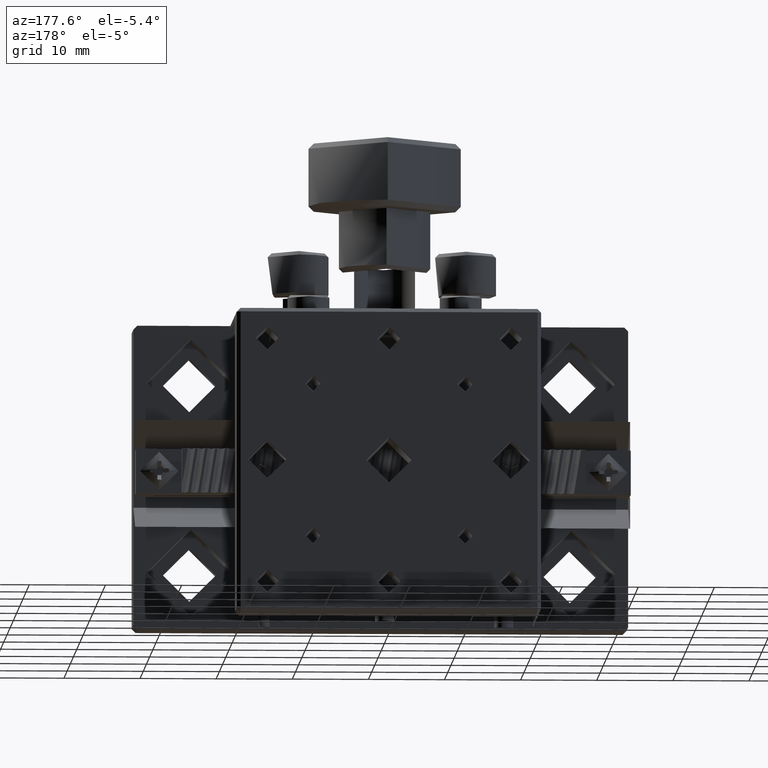
[diagram: clean part render]
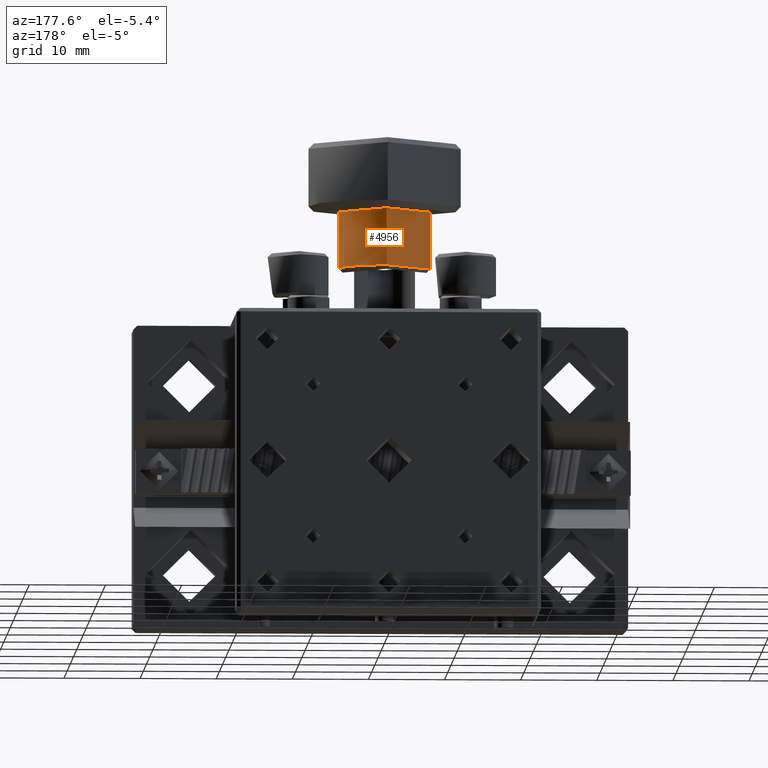
[diagram: same view with one face highlighted and labeled with its STEP entity id]
A machine part, auxiliary view. The second image highlights one B-rep face of the part: STEP entity #4956.
In plain terms, the highlighted cylindrical surface (bore or boss wall) has radius 6 mm, axis along (-0, 0, -1).
Its self-contained STEP definition (entity closure, byte-faithful):
#621 = CARTESIAN_POINT ( 'NONE',  ( 20.94207780115355888, 31.34494758935001002, 31.71702338010756606 ) ) ;
#645 = CARTESIAN_POINT ( 'NONE',  ( 20.61330177514791373, 31.35204733727816517, 34.00000000000007105 ) ) ;
#774 = CARTESIAN_POINT ( 'NONE',  ( 26.56495472857609741, 26.12102782520699762, 31.49879562518553300 ) ) ;
#888 = CARTESIAN_POINT ( 'NONE',  ( 26.49493631010969708, 26.53838526627621874, 30.09771519939300788 ) ) ;
#895 = CIRCLE ( 'NONE', #6429, 5.999999999999998224 ) ;
#939 = FACE_OUTER_BOUND ( 'NONE', #10298, .T. ) ;
#985 = CARTESIAN_POINT ( 'NONE',  ( 26.60620202721976213, 25.68082336328382098, 29.28297661989261158 ) ) ;
#1031 = CARTESIAN_POINT ( 'NONE',  ( 26.61330177514791373, 25.35204733727816517, 31.75000000000007816 ) ) ;
#1086 = CARTESIAN_POINT ( 'NONE',  ( 26.48338682990702253, 24.11012638168990918, 30.66378595057141965 ) ) ;
#1201 = CARTESIAN_POINT ( 'NONE',  ( 26.58197750681777904, 24.72128764860394412, 31.59150460750290890 ) ) ;
#1276 = ORIENTED_EDGE ( 'NONE', *, *, #3746, .T. ) ;
#2215 = CARTESIAN_POINT ( 'NONE',  ( 21.85522290605458196, 31.22213235399452458, 30.66378419298477453 ) ) ;
#2223 = CARTESIAN_POINT ( 'NONE',  ( 20.61330177514791373, 25.35204733727816517, 27.50000000000007816 ) ) ;
#2371 = CARTESIAN_POINT ( 'NONE',  ( 26.60620299958645063, 25.02328801983705731, 31.71702810331237998 ) ) ;
#2407 = CARTESIAN_POINT ( 'NONE',  ( 20.61330177514791373, 31.35204733727816517, 29.25000000000007461 ) ) ;
#2423 = FACE_BOUND ( 'NONE', #13084, .T. ) ;
#2530 = CARTESIAN_POINT ( 'NONE',  ( 21.24407371734168137, 31.32072171803475413, 31.59149729268816031 ) ) ;
#2746 = CARTESIAN_POINT ( 'NONE',  ( 20.61330177514791728, 31.35204733727816517, 29.25000000000008171 ) ) ;
#2802 = CARTESIAN_POINT ( 'NONE',  ( 26.48167830132980782, 26.60191011635279068, 30.66455656023573084 ) ) ;
#2975 = CARTESIAN_POINT ( 'NONE',  ( 19.42696518487468538, 31.23368214594944092, 30.09771106524702944 ) ) ;
#3746 = EDGE_CURVE ( 'NONE', #3978, #3978, #4879, .T. ) ;
#3949 = CARTESIAN_POINT ( 'NONE',  ( 19.37138081955964708, 31.22213239203728108, 30.33621404942876509 ) ) ;
#3978 = VERTEX_POINT ( 'NONE', #1031 ) ;
#4011 = CARTESIAN_POINT ( 'NONE',  ( 26.49005416121396905, 26.56202568077747017, 30.17573812199579564 ) ) ;
#4056 = CARTESIAN_POINT ( 'NONE',  ( 19.40332427742540489, 31.22879989843307058, 30.17573474972033409 ) ) ;
#4209 = CARTESIAN_POINT ( 'NONE',  ( 26.48163459737539682, 24.10197938214238178, 30.58071063745303064 ) ) ;
#4268 = CARTESIAN_POINT ( 'NONE',  ( 19.39653506229277369, 31.22771975006700984, 30.82932752238141560 ) ) ;
#4595 = CARTESIAN_POINT ( 'NONE',  ( 19.98254208647368912, 31.32072306894804470, 29.40849539249725098 ) ) ;
#4659 = EDGE_CURVE ( 'NONE', #7126, #7126, #18489, .T. ) ;
#4879 = B_SPLINE_CURVE_WITH_KNOTS ( 'NONE', 3,
 ( #14293, #10708, #12353, #9305, #774, #20912, #5756, #12673, #2802, #18870, #5645, #4011, #888, #20793, #19070, #11044, #18976, #985, #13968, #12247, #9091, #12558, #5960, #13855, #10612, #20593, #15917, #4209, #1086, #16029, #10938, #7576, #17551, #17224, #1201, #2371, #9410, #9202 ),
 .UNSPECIFIED., .T., .F.,
 ( 4, 2, 2, 2, 2, 2, 2, 2, 2, 2, 2, 2, 2, 2, 2, 2, 2, 2, 4 ),
 ( 0.000000000000000000, 0.0004897154399883620925, 0.0009794308799767241849, 0.001469146319965086061, 0.001958861759953448370, 0.002203719479947629199, 0.002448577199941810462, 0.002938292639930172988, 0.003428008079918536382, 0.003917723519906899342, 0.004407438959895261868, 0.004897154399883625261, 0.005386869839871987788, 0.005876585279860350314, 0.006121442999854532011, 0.006366300719848713707, 0.006856016159837085774, 0.007345731599825458709, 0.007835447039813829909 ),
 .UNSPECIFIED. ) ;
#4956 = ADVANCED_FACE ( 'NONE', ( #7208, #939, #10443, #2423 ), #7529, .T. ) ;
#5170 = DIRECTION ( 'NONE',  ( 0.000000000000000000, 1.000000000000000000, 0.000000000000000000 ) ) ;
#5273 = CARTESIAN_POINT ( 'NONE',  ( 20.61330177514791373, 25.35204733727816517, 26.50000000000007461 ) ) ;
#5390 = DIRECTION ( 'NONE',  ( 2.391543916884184328E-17, -1.201068257676374141E-16, 1.000000000000000000 ) ) ;
#5645 = CARTESIAN_POINT ( 'NONE',  ( 26.48338679186427669, 26.59396846818484761, 30.33621580701539955 ) ) ;
#5756 = CARTESIAN_POINT ( 'NONE',  ( 26.51345325881586135, 26.44395385318280489, 31.12985510284354262 ) ) ;
#5805 = DIRECTION ( 'NONE',  ( -2.391543916884184328E-17, 1.201068257676374141E-16, -1.000000000000000000 ) ) ;
#5903 = CARTESIAN_POINT ( 'NONE',  ( 21.38228226307673907, 31.30370029070635951, 29.50120437481464464 ) ) ;
#5960 = CARTESIAN_POINT ( 'NONE',  ( 26.56495600913065047, 24.58307642367194390, 29.50119671124894083 ) ) ;
#6219 = CARTESIAN_POINT ( 'NONE',  ( 20.44767880012246053, 31.35204733727816517, 29.25000000000007816 ) ) ;
#6429 = AXIS2_PLACEMENT_3D ( 'NONE', #5273, #5390, #5170 ) ;
#6449 = CARTESIAN_POINT ( 'NONE',  ( 19.61289111724011036, 31.26922093303049976, 29.73277140763234527 ) ) ;
#7099 = CARTESIAN_POINT ( 'NONE',  ( 21.61371778663480470, 31.26921998693287819, 31.26722128161361169 ) ) ;
#7126 = VERTEX_POINT ( 'NONE', #645 ) ;
#7203 = CARTESIAN_POINT ( 'NONE',  ( 19.61444998438370035, 31.26946227007983836, 31.26890791105290646 ) ) ;
#7208 = FACE_BOUND ( 'NONE', #10928, .T. ) ;
#7299 = CARTESIAN_POINT ( 'NONE',  ( 21.86316455422252503, 31.22042386346004861, 30.33544343976443969 ) ) ;
#7529 = CYLINDRICAL_SURFACE ( 'NONE', #7764, 5.999999999999998224 ) ;
#7576 = CARTESIAN_POINT ( 'NONE',  ( 26.51340261891454375, 24.25984765527727660, 31.12970105956736688 ) ) ;
#7620 = CARTESIAN_POINT ( 'NONE',  ( 20.61330177514791373, 31.35204733727816517, 26.50000000000007461 ) ) ;
#7741 = EDGE_CURVE ( 'NONE', #10359, #10359, #895, .T. ) ;
#7764 = AXIS2_PLACEMENT_3D ( 'NONE', #2223, #5805, #10884 ) ;
#7847 = CARTESIAN_POINT ( 'NONE',  ( 19.52110209314702871, 31.25214818104479875, 29.87029894043278233 ) ) ;
#7880 = DIRECTION ( 'NONE',  ( 0.000000000000000000, 1.000000000000000000, 0.000000000000000000 ) ) ;
#8928 = CARTESIAN_POINT ( 'NONE',  ( 20.61330177514791728, 31.35204733727816517, 29.25000000000008171 ) ) ;
#9091 = CARTESIAN_POINT ( 'NONE',  ( 26.60624588205585894, 25.02395316856354057, 29.28275865761598240 ) ) ;
#9202 = CARTESIAN_POINT ( 'NONE',  ( 26.61330177514791018, 25.35204733727816517, 31.75000000000007816 ) ) ;
#9305 = CARTESIAN_POINT ( 'NONE',  ( 26.58199920261543525, 25.98266218096043900, 31.59162563951485581 ) ) ;
#9410 = CARTESIAN_POINT ( 'NONE',  ( 26.61330177514790307, 25.18642436225270842, 31.75000000000007816 ) ) ;
#9578 = CARTESIAN_POINT ( 'NONE',  ( 20.28454245770679520, 31.34494856171669852, 29.28297189668776923 ) ) ;
#9925 = ORIENTED_EDGE ( 'NONE', *, *, #7741, .T. ) ;
#10114 = ORIENTED_EDGE ( 'NONE', *, *, #4659, .T. ) ;
#10298 = EDGE_LOOP ( 'NONE', ( #9925 ) ) ;
#10359 = VERTEX_POINT ( 'NONE', #7620 ) ;
#10436 = CARTESIAN_POINT ( 'NONE',  ( 21.83006919773188415, 31.22771958894795574, 30.17067595078513875 ) ) ;
#10443 = FACE_OUTER_BOUND ( 'NONE', #16554, .T. ) ;
#10612 = CARTESIAN_POINT ( 'NONE',  ( 26.51345388025833572, 24.26014410324989257, 29.87013876287819159 ) ) ;
#10708 = CARTESIAN_POINT ( 'NONE',  ( 26.61330177514792084, 25.51767031230362193, 31.75000000000007816 ) ) ;
#10875 = CARTESIAN_POINT ( 'NONE',  ( 19.36323382001211968, 31.22038015950563050, 30.41928936254712923 ) ) ;
#10884 = DIRECTION ( 'NONE',  ( 0.000000000000000000, 1.000000000000000000, 0.000000000000000000 ) ) ;
#10928 = EDGE_LOOP ( 'NONE', ( #1276 ) ) ;
#10938 = CARTESIAN_POINT ( 'NONE',  ( 26.49493658381919658, 24.16571074700494393, 30.90228893475311622 ) ) ;
#11044 = CARTESIAN_POINT ( 'NONE',  ( 26.56505989241473031, 26.12038299010820097, 29.50043958882410067 ) ) ;
#11445 = CARTESIAN_POINT ( 'NONE',  ( 20.61330177514791373, 25.35204733727816517, 34.00000000000007105 ) ) ;
#11946 = EDGE_CURVE ( 'NONE', #20201, #20201, #15672, .T. ) ;
#12071 = CARTESIAN_POINT ( 'NONE',  ( 19.98269881171570006, 31.32074608613271494, 31.59163280074585245 ) ) ;
#12176 = CARTESIAN_POINT ( 'NONE',  ( 20.94141307482918890, 31.34499044035792537, 29.28276354271663706 ) ) ;
#12247 = CARTESIAN_POINT ( 'NONE',  ( 26.61330235971993119, 25.18644396101118943, 29.24999719405432685 ) ) ;
#12297 = CARTESIAN_POINT ( 'NONE',  ( 21.38163742797795308, 31.30380545454499597, 31.49956041117606986 ) ) ;
#12353 = CARTESIAN_POINT ( 'NONE',  ( 26.60624487822767392, 25.68015863695942258, 31.71723645728351926 ) ) ;
#12497 = CARTESIAN_POINT ( 'NONE',  ( 21.82328011864720807, 31.22879972334421694, 30.82426187800433937 ) ) ;
#12558 = CARTESIAN_POINT ( 'NONE',  ( 26.58200052400245283, 24.72144437384594085, 29.40836719925429676 ) ) ;
#12673 = CARTESIAN_POINT ( 'NONE',  ( 26.48897402681771140, 26.56881475986214980, 30.82932404921501757 ) ) ;
#12945 = AXIS2_PLACEMENT_3D ( 'NONE', #11445, #14483, #7880 ) ;
#13084 = EDGE_LOOP ( 'NONE', ( #17161 ) ) ;
#13796 = CARTESIAN_POINT ( 'NONE',  ( 19.52139854111964112, 31.25219944238858716, 31.12986123712197184 ) ) ;
#13855 = CARTESIAN_POINT ( 'NONE',  ( 26.53071670794958692, 24.35319554651395535, 29.73109208894727473 ) ) ;
#13900 = CARTESIAN_POINT ( 'NONE',  ( 21.86336972954774538, 31.22038015966242597, 30.58070976639050542 ) ) ;
#13968 = CARTESIAN_POINT ( 'NONE',  ( 26.61330119050112941, 25.51769307026494715, 29.25000280630463934 ) ) ;
#14020 = CARTESIAN_POINT ( 'NONE',  ( 21.61215868899351378, 31.26946136153982536, 29.73109912383482367 ) ) ;
#14293 = CARTESIAN_POINT ( 'NONE',  ( 26.61330177514791018, 25.35204733727816517, 31.75000000000007816 ) ) ;
#14483 = DIRECTION ( 'NONE',  ( -2.391543916884184328E-17, 1.201068257676374141E-16, -1.000000000000000000 ) ) ;
#15541 = CARTESIAN_POINT ( 'NONE',  ( 20.77892475017337048, 31.35204733727816517, 29.25000000000008527 ) ) ;
#15672 = B_SPLINE_CURVE_WITH_KNOTS ( 'NONE', 3,
 ( #8928, #15541, #12176, #17373, #5903, #14020, #20525, #10436, #7299, #13900, #2215, #12497, #20641, #19018, #7099, #12297, #2530, #621, #18916, #15761, #18804, #12071, #19122, #7203, #13796, #4268, #17269, #10875, #3949, #4056, #2975, #7847, #6449, #19561, #4595, #9578, #6219, #2746 ),
 .UNSPECIFIED., .T., .F.,
 ( 4, 2, 2, 2, 2, 2, 2, 2, 2, 2, 2, 2, 2, 2, 2, 2, 2, 2, 4 ),
 ( 0.000000000000000000, 0.0004897154399883646946, 0.0009794308799767293891, 0.001469146319965094084, 0.001958861759953458778, 0.002203719479947640909, 0.002448577199941823473, 0.002938292639930187300, 0.003428008079918551127, 0.003917723519906914954, 0.004407438959895278348, 0.004897154399883642609, 0.005386869839872006002, 0.005876585279860369396, 0.006121442999854551092, 0.006366300719848731922, 0.006856016159837104856, 0.007345731599825476923, 0.007835447039813848991 ),
 .UNSPECIFIED. ) ;
#15761 = CARTESIAN_POINT ( 'NONE',  ( 20.44769839888095930, 31.35204792185020750, 31.75000280594582236 ) ) ;
#15917 = CARTESIAN_POINT ( 'NONE',  ( 26.48167830164339165, 24.10218455967577000, 30.33544169730520679 ) ) ;
#16029 = CARTESIAN_POINT ( 'NONE',  ( 26.49005433630281914, 24.14206983955566699, 30.82426525027983999 ) ) ;
#16554 = EDGE_LOOP ( 'NONE', ( #10114 ) ) ;
#17161 = ORIENTED_EDGE ( 'NONE', *, *, #11946, .T. ) ;
#17224 = CARTESIAN_POINT ( 'NONE',  ( 26.56506115751896857, 24.58372116885606928, 31.49956795482854233 ) ) ;
#17269 = CARTESIAN_POINT ( 'NONE',  ( 19.36343899754550435, 31.22042386377363243, 30.66455830269493532 ) ) ;
#17373 = CARTESIAN_POINT ( 'NONE',  ( 21.24391661883018756, 31.32074476474567248, 29.40837436048528630 ) ) ;
#17551 = CARTESIAN_POINT ( 'NONE',  ( 26.53047537090023766, 24.35163667937035115, 31.26722859236783592 ) ) ;
#18489 = CIRCLE ( 'NONE', #12945, 5.999999999999998224 ) ;
#18804 = CARTESIAN_POINT ( 'NONE',  ( 20.28520760643327847, 31.34499144418611394, 31.71724134238416326 ) ) ;
#18870 = CARTESIAN_POINT ( 'NONE',  ( 26.48163459753216031, 26.60211529167799682, 30.41929023360965090 ) ) ;
#18916 = CARTESIAN_POINT ( 'NONE',  ( 20.77894750813469216, 31.35204675263140928, 31.74999719369554896 ) ) ;
#18976 = CARTESIAN_POINT ( 'NONE',  ( 26.58197615590450624, 25.98281927947194703, 29.40850270731201377 ) ) ;
#19018 = CARTESIAN_POINT ( 'NONE',  ( 21.70550479813202571, 31.25214754787808502, 31.12969478868700435 ) ) ;
#19070 = CARTESIAN_POINT ( 'NONE',  ( 26.53047442480262319, 26.35246334876505614, 29.73277871838655173 ) ) ;
#19122 = CARTESIAN_POINT ( 'NONE',  ( 19.84433086154167469, 31.30370157126091613, 31.49880328875121549 ) ) ;
#19561 = CARTESIAN_POINT ( 'NONE',  ( 19.84497560672582139, 31.30380671964921291, 29.50043204517162110 ) ) ;
#20201 = VERTEX_POINT ( 'NONE', #2407 ) ;
#20525 = CARTESIAN_POINT ( 'NONE',  ( 21.70520829105255700, 31.25219882094610568, 29.87014489715661014 ) ) ;
#20593 = CARTESIAN_POINT ( 'NONE',  ( 26.48897418793677261, 24.13528062442304289, 30.17067247761876203 ) ) ;
#20641 = CARTESIAN_POINT ( 'NONE',  ( 21.79963970414595664, 31.23368187223993075, 30.90228480060715555 ) ) ;
#20793 = CARTESIAN_POINT ( 'NONE',  ( 26.51340198574784068, 26.44425036026227360, 29.87030521131315552 ) ) ;
#20912 = CARTESIAN_POINT ( 'NONE',  ( 26.53071579940957747, 26.35090425112375812, 31.26890087616532909 ) ) ;